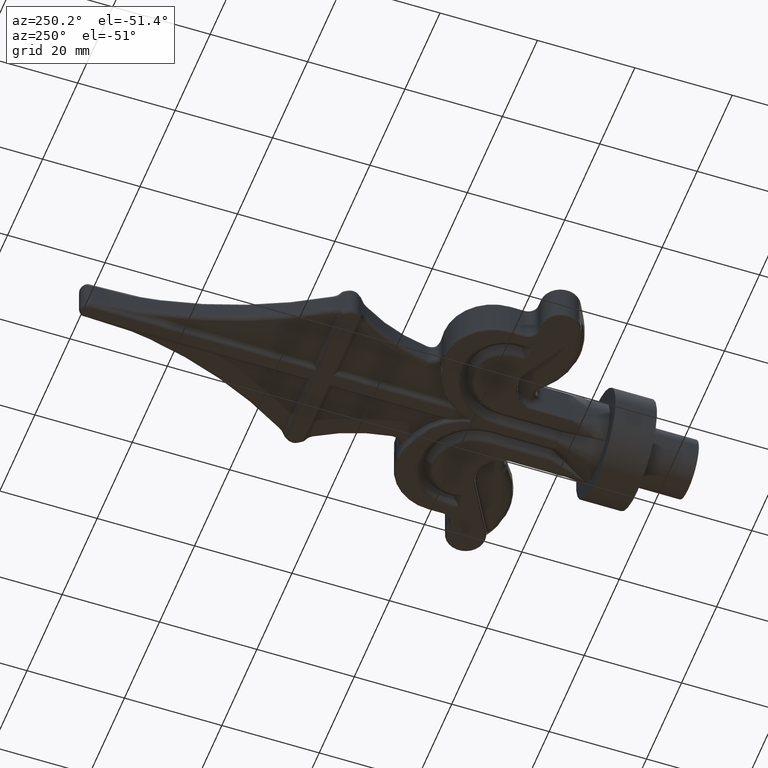
[diagram: clean part render]
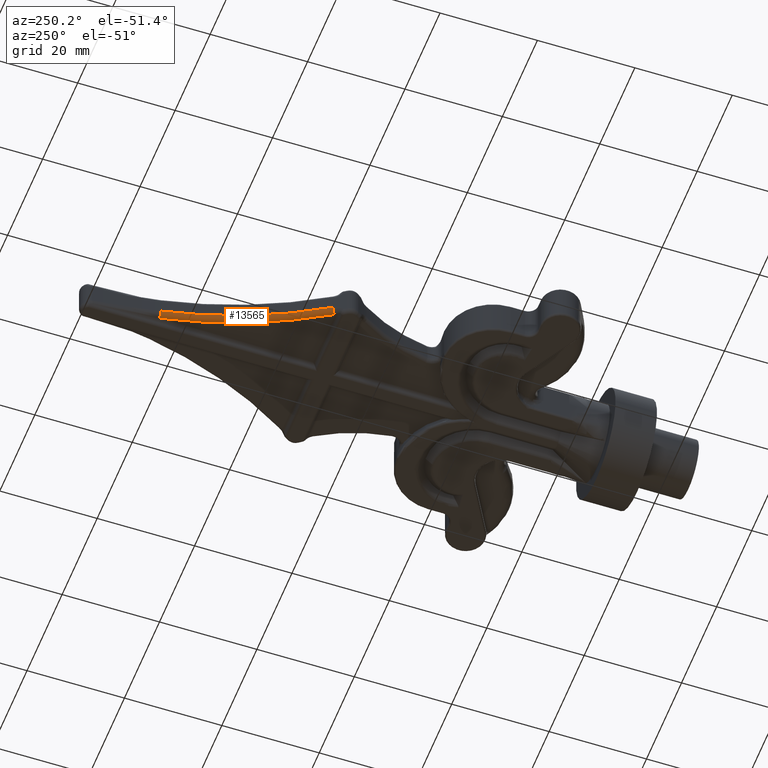
[diagram: same view with one face highlighted and labeled with its STEP entity id]
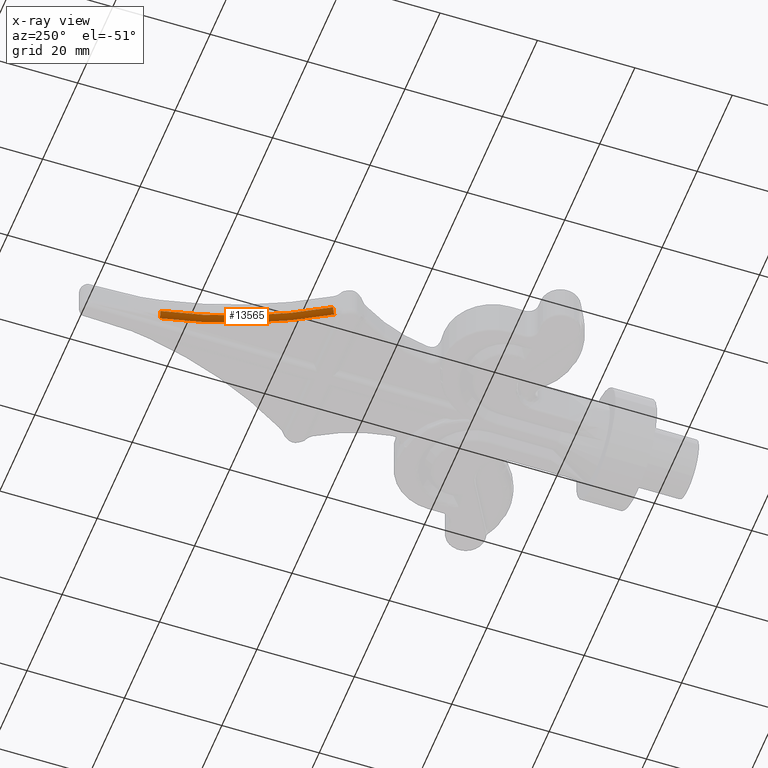
[diagram: x-ray of the same camera — body ghosted, the highlighted face saturated]
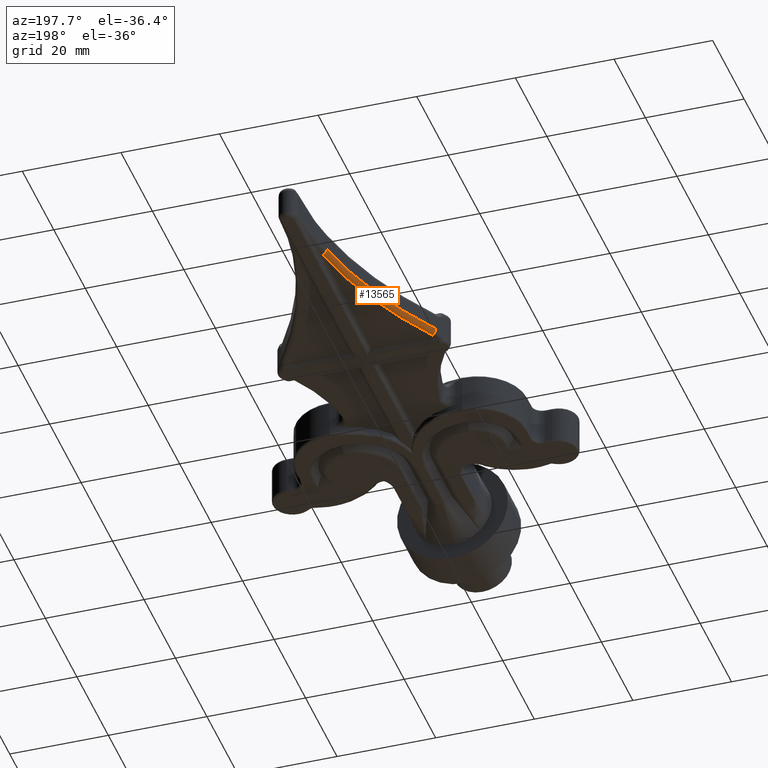
[diagram: same view with one face highlighted and labeled with its STEP entity id]
A machine part, auxiliary view. The second image highlights one B-rep face of the part: STEP entity #13565.
The next image is the same camera in x-ray: the body ghosted, the highlighted face saturated — about 0% of this face is hidden behind the body in this view.
A second angle (auxiliary view) of the same face is appended — the face is thin or edge-on in the first view.
In plain terms, the highlighted toroidal blend (fillet) surface has major radius 90.5172 mm and minor (blend) radius 1 mm.
Its self-contained STEP definition (entity closure, byte-faithful):
#35 = VERTEX_POINT ( 'NONE', #16550 ) ;
#82 = DIRECTION ( 'NONE',  ( 0.000000000000000000, 0.000000000000000000, 1.000000000000000000 ) ) ;
#945 = DIRECTION ( 'NONE',  ( -0.9828321917339619684, 0.1845017151449190873, 0.000000000000000000 ) ) ;
#1559 = CARTESIAN_POINT ( 'NONE',  ( -14.78207323130878059, 51.04541091754501991, -2.500000000000000000 ) ) ;
#1961 = CIRCLE ( 'NONE', #5753, 90.51719354643033455 ) ;
#2229 = TOROIDAL_SURFACE ( 'NONE', #13386, 90.51719354643033455, 1.000000000000000000 ) ;
#2561 = EDGE_CURVE ( 'NONE', #13806, #35, #5167, .T. ) ;
#2662 = CARTESIAN_POINT ( 'NONE',  ( -2.500000000000000444, 82.44229001420114855, -2.500000000000000000 ) ) ;
#3108 = EDGE_LOOP ( 'NONE', ( #9616, #18177, #10723, #7877 ) ) ;
#3748 = DIRECTION ( 'NONE',  ( 0.1845017151449188375, 0.9828321917339619684, 0.000000000000000000 ) ) ;
#4019 = VERTEX_POINT ( 'NONE', #2662 ) ;
#4899 = CARTESIAN_POINT ( 'NONE',  ( -91.46321172284538648, 99.14286747362201879, -1.500000000000000000 ) ) ;
#5167 = CIRCLE ( 'NONE', #12006, 89.51719354643033455 ) ;
#5753 = AXIS2_PLACEMENT_3D ( 'NONE', #5950, #82, #12068 ) ;
#5950 = CARTESIAN_POINT ( 'NONE',  ( -91.46321172284538648, 99.14286747362201879, -2.500000000000000000 ) ) ;
#6164 = EDGE_CURVE ( 'NONE', #4019, #13806, #9181, .T. ) ;
#6935 = DIRECTION ( 'NONE',  ( -0.8471444538567505234, 0.5313626579839308972, 0.000000000000000000 ) ) ;
#7877 = ORIENTED_EDGE ( 'NONE', *, *, #18850, .F. ) ;
#9181 = CIRCLE ( 'NONE', #14693, 1.000000000000000000 ) ;
#9616 = ORIENTED_EDGE ( 'NONE', *, *, #15011, .T. ) ;
#10188 = FACE_OUTER_BOUND ( 'NONE', #3108, .T. ) ;
#10217 = DIRECTION ( 'NONE',  ( 0.5313626579839308972, 0.8471444538567505234, 0.000000000000000000 ) ) ;
#10723 = ORIENTED_EDGE ( 'NONE', *, *, #6164, .F. ) ;
#10861 = VERTEX_POINT ( 'NONE', #1559 ) ;
#12006 = AXIS2_PLACEMENT_3D ( 'NONE', #4899, #15411, #16931 ) ;
#12068 = DIRECTION ( 'NONE',  ( -1.000000000000000000, -3.526281660688099581E-15, 0.000000000000000000 ) ) ;
#12639 = AXIS2_PLACEMENT_3D ( 'NONE', #14708, #10217, #6935 ) ;
#13386 = AXIS2_PLACEMENT_3D ( 'NONE', #19131, #19267, #16128 ) ;
#13550 = CIRCLE ( 'NONE', #12639, 1.000000000000001554 ) ;
#13565 = ADVANCED_FACE ( 'NONE', ( #10188 ), #2229, .T. ) ;
#13806 = VERTEX_POINT ( 'NONE', #15786 ) ;
#14693 = AXIS2_PLACEMENT_3D ( 'NONE', #15659, #3748, #945 ) ;
#14708 = CARTESIAN_POINT ( 'NONE',  ( -14.78207323130878059, 51.04541091754501991, -1.500000000000000000 ) ) ;
#15011 = EDGE_CURVE ( 'NONE', #10861, #35, #13550, .T. ) ;
#15411 = DIRECTION ( 'NONE',  ( -0.000000000000000000, -0.000000000000000000, -1.000000000000000000 ) ) ;
#15659 = CARTESIAN_POINT ( 'NONE',  ( -2.500000000000000444, 82.44229001420114855, -1.500000000000000000 ) ) ;
#15786 = CARTESIAN_POINT ( 'NONE',  ( -3.482832191733963523, 82.62679172934606697, -1.500000000000000000 ) ) ;
#16128 = DIRECTION ( 'NONE',  ( -1.000000000000000000, 0.000000000000000000, 0.000000000000000000 ) ) ;
#16550 = CARTESIAN_POINT ( 'NONE',  ( -15.62921768516553200, 51.57677357552895359, -1.500000000000000000 ) ) ;
#16931 = DIRECTION ( 'NONE',  ( -1.000000000000000000, 0.000000000000000000, 0.000000000000000000 ) ) ;
#18177 = ORIENTED_EDGE ( 'NONE', *, *, #2561, .F. ) ;
#18850 = EDGE_CURVE ( 'NONE', #10861, #4019, #1961, .T. ) ;
#19131 = CARTESIAN_POINT ( 'NONE',  ( -91.46321172284538648, 99.14286747362201879, -1.500000000000000000 ) ) ;
#19267 = DIRECTION ( 'NONE',  ( -0.000000000000000000, -0.000000000000000000, -1.000000000000000000 ) ) ;